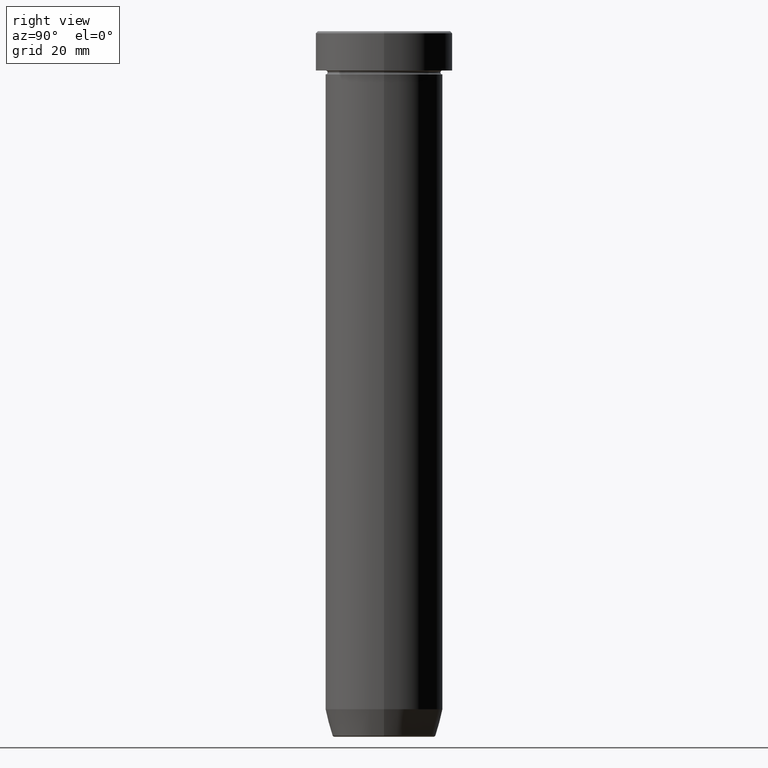
[diagram: clean part render]
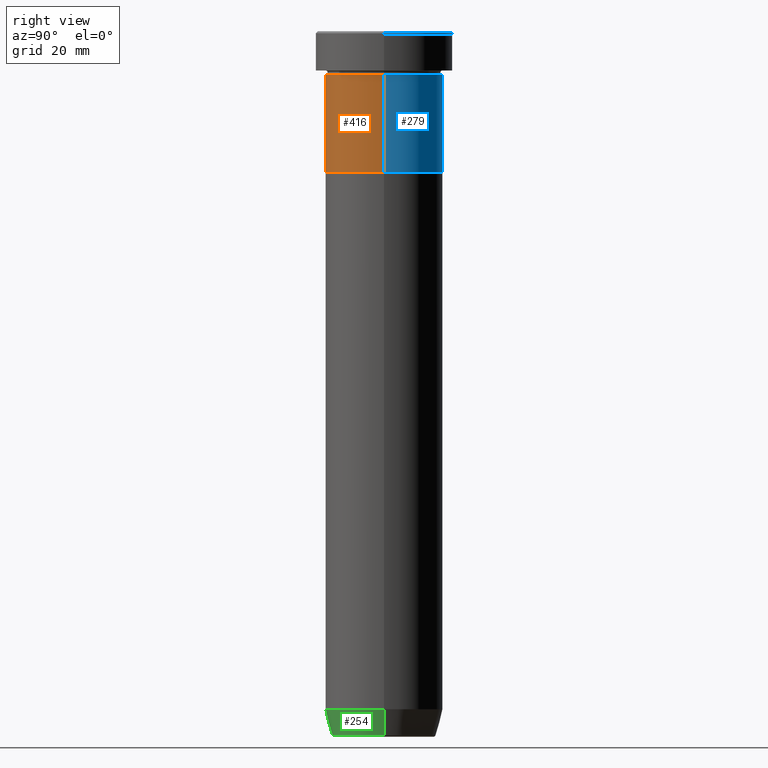
[diagram: same view with three faces highlighted in distinct colors, each labeled with its STEP entity id]
A machine part, right view with three faces highlighted in distinct colors.
Their STEP definitions:

[orange] entity #416 — the highlighted cylindrical surface (partial cylindrical patch) has radius 15 mm, axis along (-0, -0, 1).
#15 = ORIENTED_EDGE ( 'NONE', *, *, #29, .T. ) ;
#29 = EDGE_CURVE ( 'NONE', #302, #301, #297, .T. ) ;
#64 = CIRCLE ( 'NONE', #350, 15.00000000000000000 ) ;
#69 = CARTESIAN_POINT ( 'NONE',  ( 0.000000000000000000, 0.000000000000000000, -36.00000000000000000 ) ) ;
#125 = DIRECTION ( 'NONE',  ( -0.000000000000000000, -0.000000000000000000, 1.000000000000000000 ) ) ;
#132 = CARTESIAN_POINT ( 'NONE',  ( -15.00000000000000000, 1.836970198721029589E-15, -36.00000000000000000 ) ) ;
#180 = DIRECTION ( 'NONE',  ( -0.000000000000000000, -0.000000000000000000, 1.000000000000000000 ) ) ;
#204 = AXIS2_PLACEMENT_3D ( 'NONE', #69, #255, #432 ) ;
#209 = DIRECTION ( 'NONE',  ( 1.000000000000000000, 0.000000000000000000, 0.000000000000000000 ) ) ;
#244 = EDGE_LOOP ( 'NONE', ( #588, #15, #380, #512 ) ) ;
#249 = AXIS2_PLACEMENT_3D ( 'NONE', #498, #125, #209 ) ;
#255 = DIRECTION ( 'NONE',  ( -0.000000000000000000, -0.000000000000000000, 1.000000000000000000 ) ) ;
#272 = DIRECTION ( 'NONE',  ( 1.000000000000000000, 0.000000000000000000, 0.000000000000000000 ) ) ;
#275 = CARTESIAN_POINT ( 'NONE',  ( 15.00000000000000000, 0.000000000000000000, -36.00000000000000000 ) ) ;
#288 = LINE ( 'NONE', #587, #374 ) ;
#289 = VERTEX_POINT ( 'NONE', #411 ) ;
#297 = CIRCLE ( 'NONE', #204, 15.00000000000000000 ) ;
#301 = VERTEX_POINT ( 'NONE', #275 ) ;
#302 = VERTEX_POINT ( 'NONE', #132 ) ;
#311 = CARTESIAN_POINT ( 'NONE',  ( -15.00000000000000000, 1.836970198721029589E-15, -11.00000000000000000 ) ) ;
#346 = VERTEX_POINT ( 'NONE', #311 ) ;
#347 = CARTESIAN_POINT ( 'NONE',  ( 15.00000000000000000, 0.000000000000000000, 0.000000000000000000 ) ) ;
#350 = AXIS2_PLACEMENT_3D ( 'NONE', #396, #359, #272 ) ;
#359 = DIRECTION ( 'NONE',  ( -0.000000000000000000, -0.000000000000000000, 1.000000000000000000 ) ) ;
#374 = VECTOR ( 'NONE', #504, 1000.000000000000000 ) ;
#380 = ORIENTED_EDGE ( 'NONE', *, *, #579, .T. ) ;
#396 = CARTESIAN_POINT ( 'NONE',  ( 0.000000000000000000, 0.000000000000000000, -11.00000000000000000 ) ) ;
#411 = CARTESIAN_POINT ( 'NONE',  ( 15.00000000000000000, 0.000000000000000000, -11.00000000000000000 ) ) ;
#416 = ADVANCED_FACE ( 'NONE', ( #576 ), #450, .T. ) ;
#424 = EDGE_CURVE ( 'NONE', #346, #289, #64, .T. ) ;
#432 = DIRECTION ( 'NONE',  ( 1.000000000000000000, 0.000000000000000000, 0.000000000000000000 ) ) ;
#450 = CYLINDRICAL_SURFACE ( 'NONE', #249, 15.00000000000000000 ) ;
#468 = LINE ( 'NONE', #347, #476 ) ;
#476 = VECTOR ( 'NONE', #180, 1000.000000000000000 ) ;
#498 = CARTESIAN_POINT ( 'NONE',  ( 0.000000000000000000, 0.000000000000000000, 0.000000000000000000 ) ) ;
#504 = DIRECTION ( 'NONE',  ( -0.000000000000000000, -0.000000000000000000, 1.000000000000000000 ) ) ;
#512 = ORIENTED_EDGE ( 'NONE', *, *, #424, .F. ) ;
#539 = EDGE_CURVE ( 'NONE', #302, #346, #288, .T. ) ;
#576 = FACE_OUTER_BOUND ( 'NONE', #244, .T. ) ;
#579 = EDGE_CURVE ( 'NONE', #301, #289, #468, .T. ) ;
#587 = CARTESIAN_POINT ( 'NONE',  ( -15.00000000000000000, 1.836970198721029589E-15, 0.000000000000000000 ) ) ;
#588 = ORIENTED_EDGE ( 'NONE', *, *, #539, .F. ) ;

[blue] entity #279 — the highlighted cylindrical surface (partial cylindrical patch) has radius 15 mm, axis along (-0, -0, 1).
#37 = FACE_OUTER_BOUND ( 'NONE', #462, .T. ) ;
#132 = CARTESIAN_POINT ( 'NONE',  ( -15.00000000000000000, 1.836970198721029589E-15, -36.00000000000000000 ) ) ;
#136 = AXIS2_PLACEMENT_3D ( 'NONE', #310, #165, #214 ) ;
#165 = DIRECTION ( 'NONE',  ( -0.000000000000000000, -0.000000000000000000, 1.000000000000000000 ) ) ;
#180 = DIRECTION ( 'NONE',  ( -0.000000000000000000, -0.000000000000000000, 1.000000000000000000 ) ) ;
#181 = EDGE_CURVE ( 'NONE', #301, #302, #239, .T. ) ;
#199 = EDGE_CURVE ( 'NONE', #289, #346, #582, .T. ) ;
#214 = DIRECTION ( 'NONE',  ( 1.000000000000000000, 0.000000000000000000, 0.000000000000000000 ) ) ;
#231 = CARTESIAN_POINT ( 'NONE',  ( 0.000000000000000000, 0.000000000000000000, 0.000000000000000000 ) ) ;
#239 = CIRCLE ( 'NONE', #136, 15.00000000000000000 ) ;
#242 = DIRECTION ( 'NONE',  ( 1.000000000000000000, 0.000000000000000000, 0.000000000000000000 ) ) ;
#275 = CARTESIAN_POINT ( 'NONE',  ( 15.00000000000000000, 0.000000000000000000, -36.00000000000000000 ) ) ;
#279 = ADVANCED_FACE ( 'NONE', ( #37 ), #319, .T. ) ;
#284 = ORIENTED_EDGE ( 'NONE', *, *, #539, .T. ) ;
#288 = LINE ( 'NONE', #587, #374 ) ;
#289 = VERTEX_POINT ( 'NONE', #411 ) ;
#301 = VERTEX_POINT ( 'NONE', #275 ) ;
#302 = VERTEX_POINT ( 'NONE', #132 ) ;
#310 = CARTESIAN_POINT ( 'NONE',  ( 0.000000000000000000, 0.000000000000000000, -36.00000000000000000 ) ) ;
#311 = CARTESIAN_POINT ( 'NONE',  ( -15.00000000000000000, 1.836970198721029589E-15, -11.00000000000000000 ) ) ;
#314 = AXIS2_PLACEMENT_3D ( 'NONE', #437, #481, #569 ) ;
#319 = CYLINDRICAL_SURFACE ( 'NONE', #371, 15.00000000000000000 ) ;
#346 = VERTEX_POINT ( 'NONE', #311 ) ;
#347 = CARTESIAN_POINT ( 'NONE',  ( 15.00000000000000000, 0.000000000000000000, 0.000000000000000000 ) ) ;
#371 = AXIS2_PLACEMENT_3D ( 'NONE', #231, #540, #242 ) ;
#374 = VECTOR ( 'NONE', #504, 1000.000000000000000 ) ;
#411 = CARTESIAN_POINT ( 'NONE',  ( 15.00000000000000000, 0.000000000000000000, -11.00000000000000000 ) ) ;
#419 = ORIENTED_EDGE ( 'NONE', *, *, #579, .F. ) ;
#437 = CARTESIAN_POINT ( 'NONE',  ( 0.000000000000000000, 0.000000000000000000, -11.00000000000000000 ) ) ;
#452 = ORIENTED_EDGE ( 'NONE', *, *, #181, .T. ) ;
#462 = EDGE_LOOP ( 'NONE', ( #452, #284, #475, #419 ) ) ;
#468 = LINE ( 'NONE', #347, #476 ) ;
#475 = ORIENTED_EDGE ( 'NONE', *, *, #199, .F. ) ;
#476 = VECTOR ( 'NONE', #180, 1000.000000000000000 ) ;
#481 = DIRECTION ( 'NONE',  ( -0.000000000000000000, -0.000000000000000000, 1.000000000000000000 ) ) ;
#504 = DIRECTION ( 'NONE',  ( -0.000000000000000000, -0.000000000000000000, 1.000000000000000000 ) ) ;
#539 = EDGE_CURVE ( 'NONE', #302, #346, #288, .T. ) ;
#540 = DIRECTION ( 'NONE',  ( -0.000000000000000000, -0.000000000000000000, 1.000000000000000000 ) ) ;
#569 = DIRECTION ( 'NONE',  ( 1.000000000000000000, 0.000000000000000000, 0.000000000000000000 ) ) ;
#579 = EDGE_CURVE ( 'NONE', #301, #289, #468, .T. ) ;
#582 = CIRCLE ( 'NONE', #314, 15.00000000000000000 ) ;
#587 = CARTESIAN_POINT ( 'NONE',  ( -15.00000000000000000, 1.836970198721029589E-15, 0.000000000000000000 ) ) ;

[green] entity #254 — the highlighted conical surface has half-angle 15 deg.
#9 = EDGE_CURVE ( 'NONE', #333, #66, #551, .T. ) ;
#12 = EDGE_LOOP ( 'NONE', ( #94, #548, #247, #422 ) ) ;
#45 = DIRECTION ( 'NONE',  ( -1.000000000000000000, 0.000000000000000000, 0.000000000000000000 ) ) ;
#66 = VERTEX_POINT ( 'NONE', #308 ) ;
#77 = FACE_OUTER_BOUND ( 'NONE', #12, .T. ) ;
#88 = DIRECTION ( 'NONE',  ( 1.000000000000000000, 0.000000000000000000, 0.000000000000000000 ) ) ;
#94 = ORIENTED_EDGE ( 'NONE', *, *, #563, .F. ) ;
#96 = CARTESIAN_POINT ( 'NONE',  ( -13.12435565298213369, 1.607270014129604188E-15, -180.0000000000000000 ) ) ;
#111 = DIRECTION ( 'NONE',  ( 1.000000000000000000, 0.000000000000000000, 0.000000000000000000 ) ) ;
#129 = CARTESIAN_POINT ( 'NONE',  ( 13.22365507213718594, 0.000000000000000000, -179.6294095225512422 ) ) ;
#143 = CARTESIAN_POINT ( 'NONE',  ( 13.12435565298213369, 0.000000000000000000, -180.0000000000000000 ) ) ;
#150 = DIRECTION ( 'NONE',  ( -0.2588190451025214611, 3.169619151431774186E-17, 0.9659258262890679791 ) ) ;
#154 = DIRECTION ( 'NONE',  ( -0.000000000000000000, -0.000000000000000000, 1.000000000000000000 ) ) ;
#185 = VECTOR ( 'NONE', #150, 1000.000000000000114 ) ;
#189 = DIRECTION ( 'NONE',  ( 0.2588190451025214611, 0.000000000000000000, 0.9659258262890679791 ) ) ;
#192 = LINE ( 'NONE', #96, #185 ) ;
#202 = CONICAL_SURFACE ( 'NONE', #455, 13.12435565298213369, 0.2617993877991502405 ) ;
#227 = VERTEX_POINT ( 'NONE', #488 ) ;
#247 = ORIENTED_EDGE ( 'NONE', *, *, #9, .T. ) ;
#251 = CIRCLE ( 'NONE', #395, 13.22365507213718594 ) ;
#254 = ADVANCED_FACE ( 'NONE', ( #77 ), #202, .T. ) ;
#266 = DIRECTION ( 'NONE',  ( -0.000000000000000000, -0.000000000000000000, 1.000000000000000000 ) ) ;
#283 = CARTESIAN_POINT ( 'NONE',  ( 0.000000000000000000, 0.000000000000000000, -179.6294095225512422 ) ) ;
#308 = CARTESIAN_POINT ( 'NONE',  ( 15.00000000000000178, 0.000000000000000000, -173.0000000000000000 ) ) ;
#328 = AXIS2_PLACEMENT_3D ( 'NONE', #489, #266, #88 ) ;
#333 = VERTEX_POINT ( 'NONE', #129 ) ;
#361 = EDGE_CURVE ( 'NONE', #444, #66, #405, .T. ) ;
#395 = AXIS2_PLACEMENT_3D ( 'NONE', #283, #550, #45 ) ;
#405 = CIRCLE ( 'NONE', #328, 15.00000000000000178 ) ;
#422 = ORIENTED_EDGE ( 'NONE', *, *, #361, .F. ) ;
#444 = VERTEX_POINT ( 'NONE', #526 ) ;
#455 = AXIS2_PLACEMENT_3D ( 'NONE', #561, #154, #111 ) ;
#474 = VECTOR ( 'NONE', #189, 1000.000000000000114 ) ;
#488 = CARTESIAN_POINT ( 'NONE',  ( -13.22365507213718594, 1.728200442216588189E-15, -179.6294095225512422 ) ) ;
#489 = CARTESIAN_POINT ( 'NONE',  ( 0.000000000000000000, 0.000000000000000000, -173.0000000000000000 ) ) ;
#522 = EDGE_CURVE ( 'NONE', #227, #333, #251, .T. ) ;
#526 = CARTESIAN_POINT ( 'NONE',  ( -15.00000000000000355, 1.836970198721029983E-15, -173.0000000000000000 ) ) ;
#548 = ORIENTED_EDGE ( 'NONE', *, *, #522, .T. ) ;
#550 = DIRECTION ( 'NONE',  ( -0.000000000000000000, -0.000000000000000000, 1.000000000000000000 ) ) ;
#551 = LINE ( 'NONE', #143, #474 ) ;
#561 = CARTESIAN_POINT ( 'NONE',  ( 0.000000000000000000, 0.000000000000000000, -180.0000000000000000 ) ) ;
#563 = EDGE_CURVE ( 'NONE', #227, #444, #192, .T. ) ;